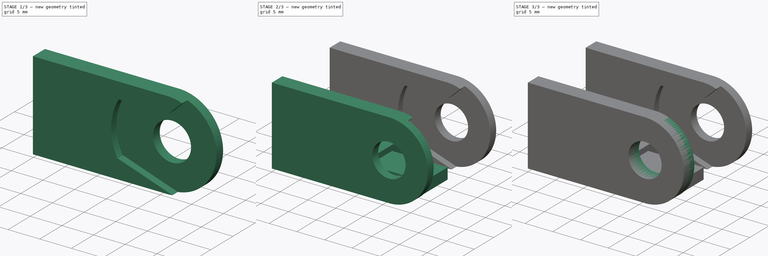
[diagram: build sequence overview — one tinted view per stage of 3, left to right]
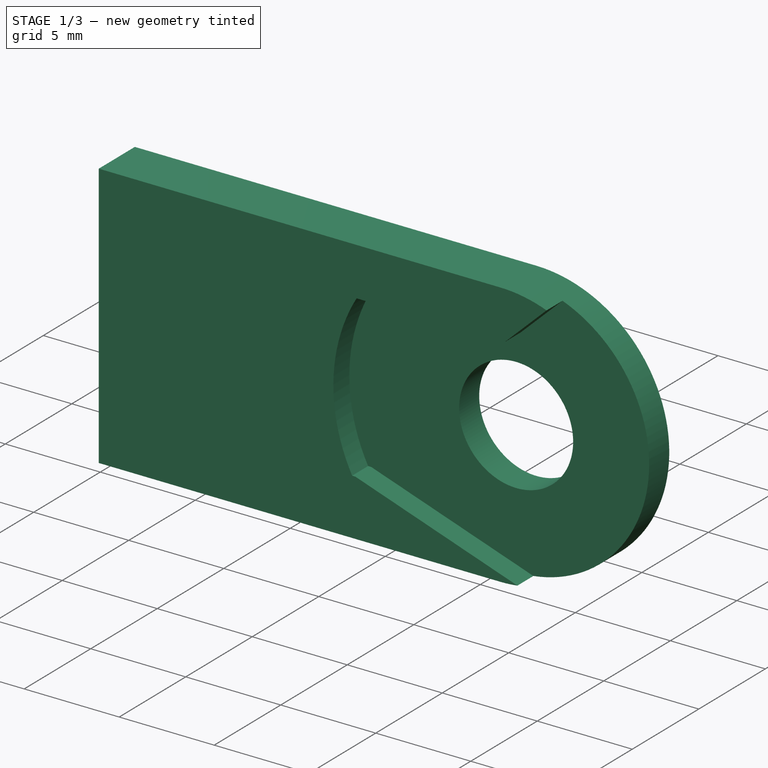
[diagram: stage 1 of 3 — iso view after this stage's code; geometry added in this stage tinted green]
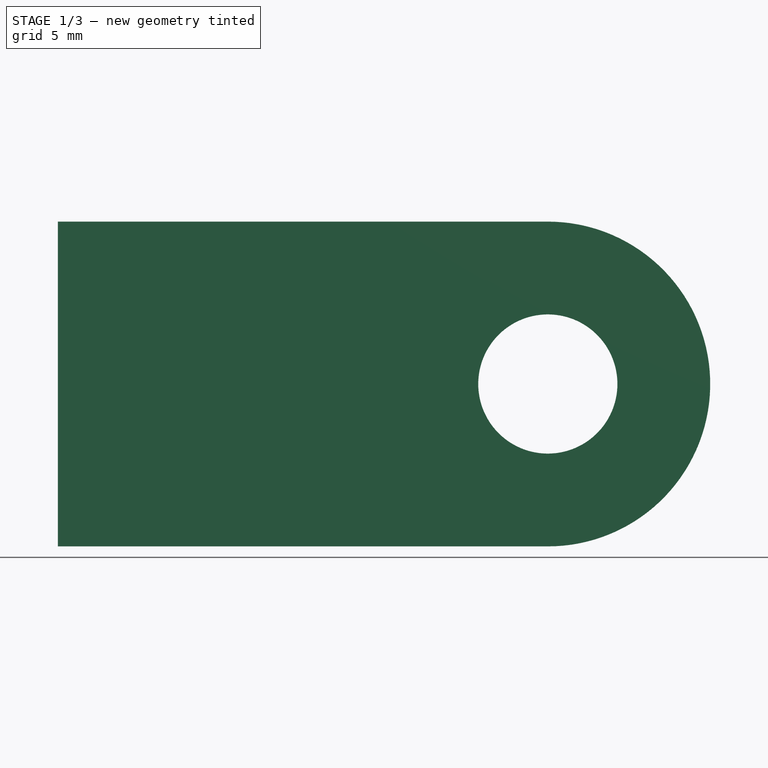
[diagram: stage 1 of 3 — front view after this stage's code; geometry added in this stage tinted green]
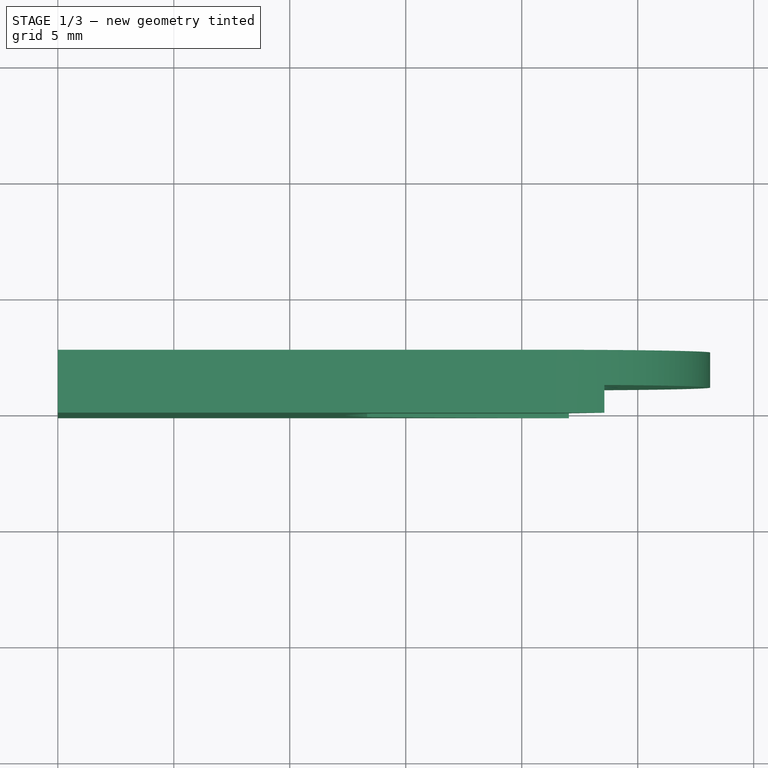
[diagram: stage 1 of 3 — top view after this stage's code; geometry added in this stage tinted green]
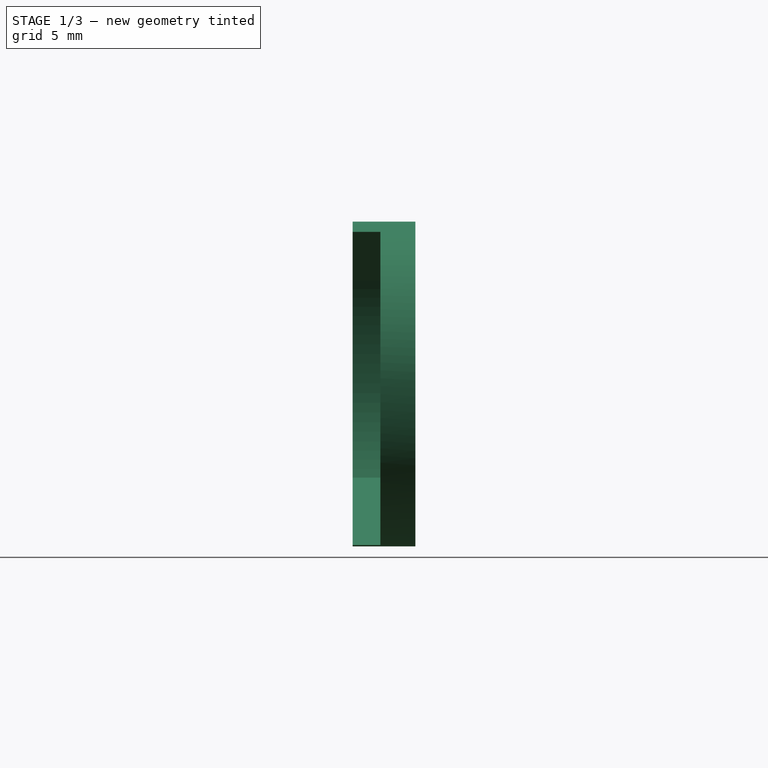
[diagram: stage 1 of 3 — right view after this stage's code; geometry added in this stage tinted green]
FCSTD DOCUMENT  (FreeCAD 0.14R3703 (Git))
Label: cadeneta
License: CC-BY 3.0
LicenseURL: http://creativecommons.org/licenses/by/3.0/
objects: Sketcher::SketchObject×3, Part::Box×2, PartDesign::Pocket×2, Part::Feature×2, Part::Mirroring×1, Part::MultiFuse×1, PartDesign::Pad×1
note: 15 computed .brp shape members not serialized (recipe doc carries the construction recipe); baked Part::Feature solids carry a one-line shape summary decoded from their .brp

FEATURE [Part::Feature] Pocket001
  shape: bbox 28.12 x 2.71 x 14 mm, 7 faces (baked)
FEATURE [Sketcher::SketchObject] Sketch001
  Placement = pos=(0,2.71,0) rot=(0,0.707107,0.707107;3.14159rad)
  Support = -> Pocket001 [Face4]
  sketch-geometry (6):
    g0: LineSegment StartX=-23.6292 StartY=13.6221 StartZ=0 EndX=-21.3589 EndY=11.4617 EndZ=0
    g1: LineSegment StartX=-21.3589 StartY=11.4617 StartZ=0 EndX=-13.5681 EndY=11.4617 EndZ=0
    g2: LineSegment StartX=-22.2056 StartY=0 StartZ=0 EndX=-13.5009 EndY=2.9617 EndZ=0
    g3: LineSegment StartX=-13.5009 StartY=2.9617 StartZ=0 EndX=-13.3332 EndY=2.9617 EndZ=0
    g4: ArcOfCircle CenterX=-21.1091 CenterY=7 CenterZ=0 NormalX=0 NormalY=0 NormalZ=1 Radius=8.76203 StartAngle=5.80419 EndAngle=6.81745
    g5: ArcOfCircle CenterX=-21.1091 CenterY=7 CenterZ=0 NormalX=0 NormalY=0 NormalZ=1 Radius=7.08536 StartAngle=1.93443 EndAngle=4.55701
  constraints (11):
    c: Coincident(g1,g0)
    c: Horizontal(g1)
    c: Coincident(g2,g3)
    c: Coincident(g4,g1)
    c: Horizontal(g3)
    c: DistanceY(g1,g3) = -8.5
    c: Coincident(g5,g0)
    c: PointOnObject(g5,g-1)
    c: Coincident(g2,g5)
    c: Coincident(g3,g4)
    c: Coincident(g5,g4)
FEATURE [PartDesign::Pocket] Pocket002
  Length = 1.2
  Sketch = -> Sketch001
  Type = 0
FEATURE [Part::Mirroring] Part__Mirroring  label="Pocket002 (Mirror #1)"
  Base = (14.0621,8.8,7)
  Normal = (0,1,-1.19209e-07)
  Source = -> Pocket002
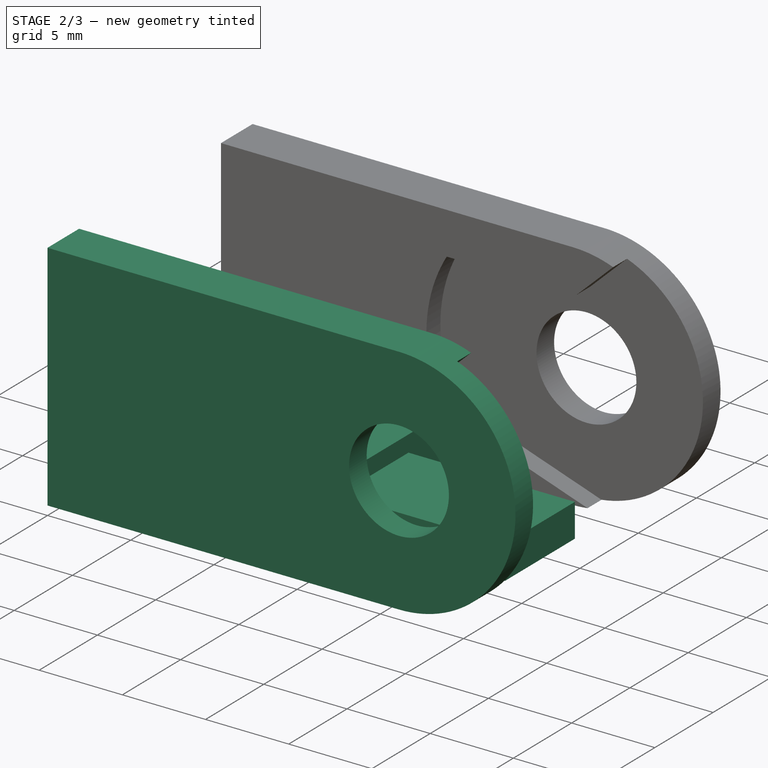
[diagram: stage 2 of 3 — iso view after this stage's code; geometry added in this stage tinted green]
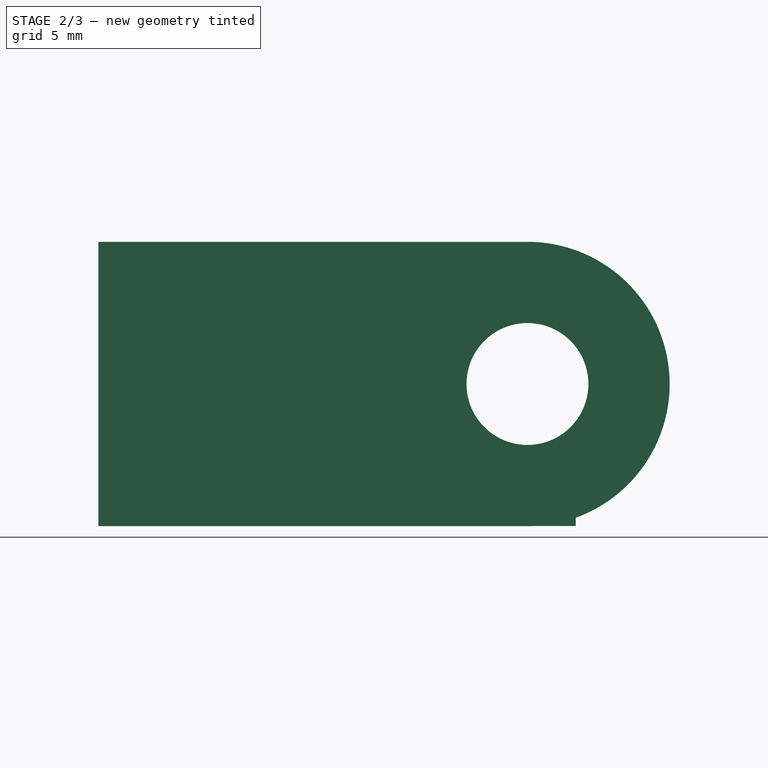
[diagram: stage 2 of 3 — front view after this stage's code; geometry added in this stage tinted green]
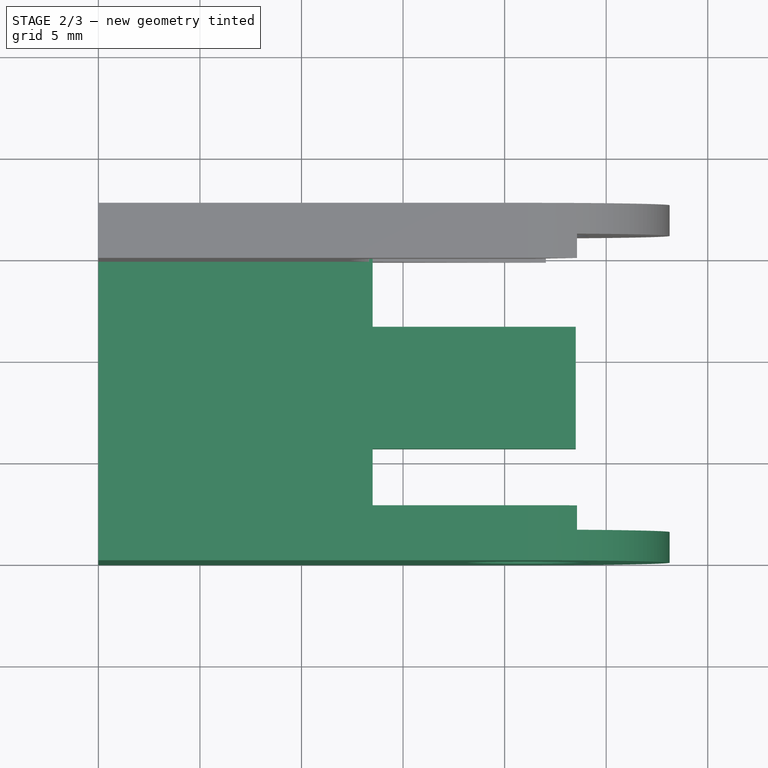
[diagram: stage 2 of 3 — top view after this stage's code; geometry added in this stage tinted green]
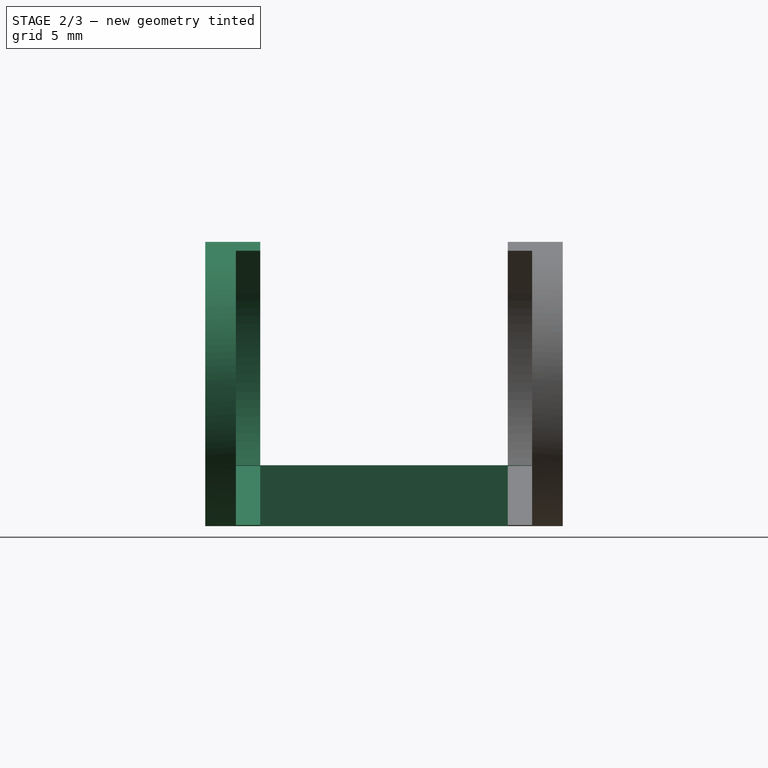
[diagram: stage 2 of 3 — right view after this stage's code; geometry added in this stage tinted green]
FEATURE [Part::Box] Box  label="Cube"
  Height = 3
  Length = 13.5
  Width = 17.5
FEATURE [Part::MultiFuse] Fusion
  Shapes = -> [Part__Mirroring,Pocket002,Box]
FEATURE [Sketcher::SketchObject] Sketch002
  Placement = pos=(13.5,0,0) rot=(0.57735,0.57735,0.57735;2.0944rad)
  Support = -> Fusion [Face17]
  sketch-geometry (4):
    g0: LineSegment StartX=5.70545 StartY=2.01179 StartZ=0 EndX=11.7055 EndY=2.01179 EndZ=0
    g1: LineSegment StartX=11.7055 StartY=2.01179 StartZ=0 EndX=11.7055 EndY=0.011787 EndZ=0
    g2: LineSegment StartX=11.7055 StartY=0.011787 StartZ=0 EndX=5.70545 EndY=0.011787 EndZ=0
    g3: LineSegment StartX=5.70545 StartY=0.011787 StartZ=0 EndX=5.70545 EndY=2.01179 EndZ=0
  constraints (10):
    c: Coincident(g0,g1)
    c: Coincident(g1,g2)
    c: Coincident(g2,g3)
    c: Coincident(g3,g0)
    c: Horizontal(g0)
    c: Horizontal(g2)
    c: Vertical(g1)
    c: Vertical(g3)
    c: Distance(g2) = 6
    c: Distance(g1) = 2
FEATURE [PartDesign::Pad] Pad
  Length = 10
  Length2 = 100
  Sketch = -> Sketch002
  Type = 0
FEATURE [Part::Feature] Pad001  label="cable-chain-end-female"
  shape: bbox 28.12 x 17.6 x 14 mm, 34 faces (baked)
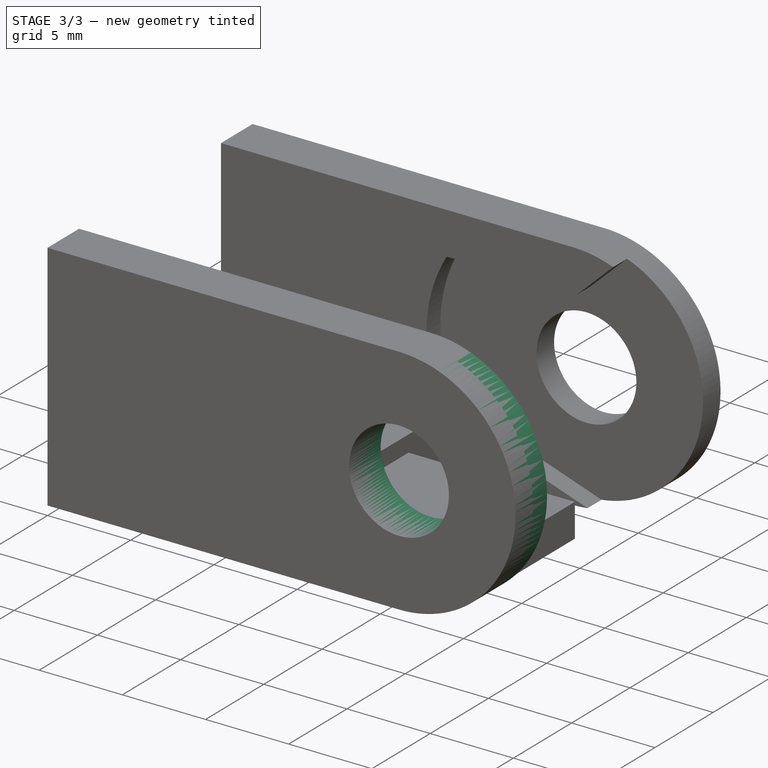
[diagram: stage 3 of 3 — iso view after this stage's code; geometry added in this stage tinted green]
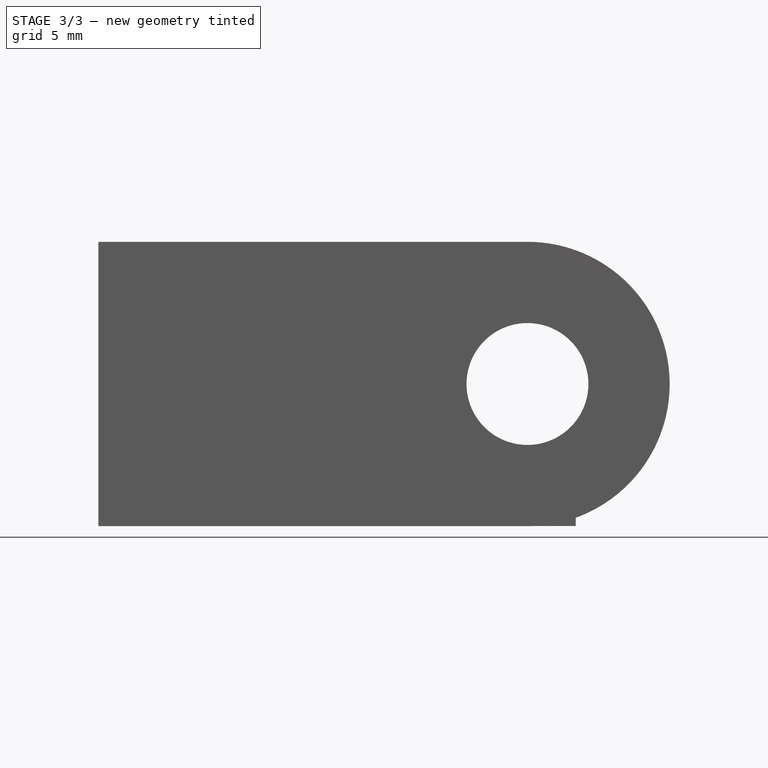
[diagram: stage 3 of 3 — front view after this stage's code; geometry added in this stage tinted green]
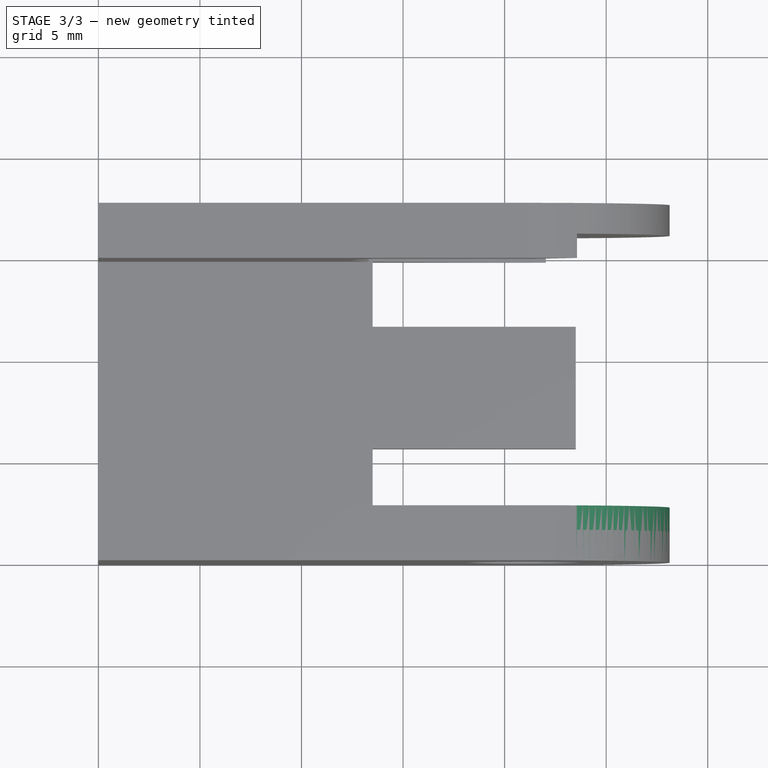
[diagram: stage 3 of 3 — top view after this stage's code; geometry added in this stage tinted green]
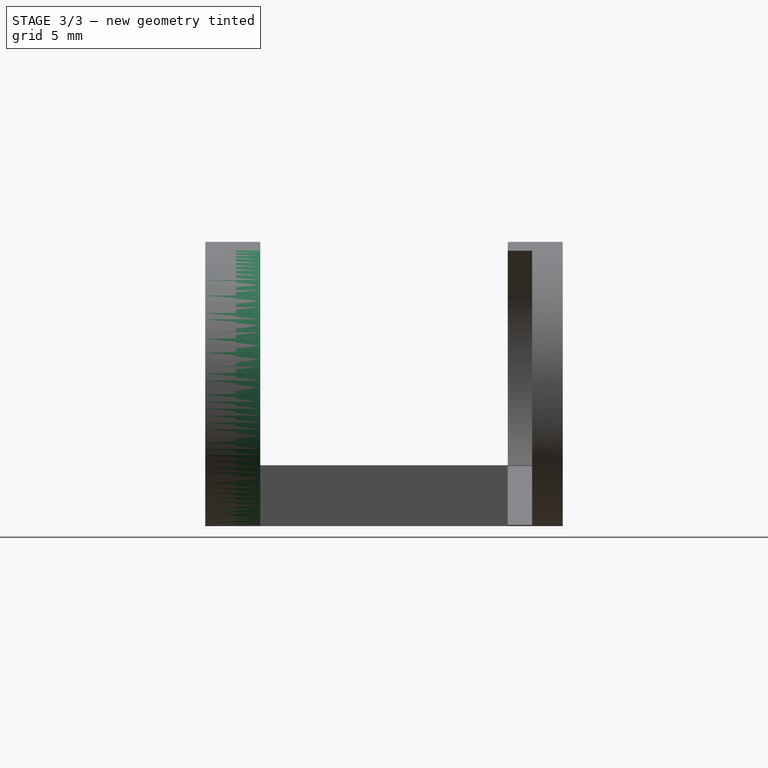
[diagram: stage 3 of 3 — right view after this stage's code; geometry added in this stage tinted green]
FEATURE [Part::Box] Box001  label="Cube001"
  Height = 14
  Length = 28.17
  Width = 2.71
FEATURE [Sketcher::SketchObject] Sketch
  Placement = pos=(0,0,0) rot=(1,0,0;1.5708rad)
  Support = -> Box001 [Face3]
  sketch-geometry (5):
    g0: Circle CenterX=21.1243 CenterY=7.00001 CenterZ=0 NormalX=0 NormalY=0 NormalZ=1 Radius=3
    g1: ArcOfCircle CenterX=21.1243 CenterY=7.00001 CenterZ=0 NormalX=0 NormalY=0 NormalZ=1 Radius=7.00001 StartAngle=4.71159 EndAngle=7.85654
    g2: LineSegment StartX=21.1064 StartY=14 StartZ=0 EndX=28.1726 EndY=14 EndZ=0
    g3: LineSegment StartX=28.1726 StartY=14 StartZ=0 EndX=28.1726 EndY=0 EndZ=0
    g4: LineSegment StartX=28.1726 StartY=0 StartZ=0 EndX=21.1187 EndY=0 EndZ=0
  constraints (8):
    c: Coincident(g1,g0)
    c: PointOnObject(g1,g-1)
    c: Coincident(g1,g2)
    c: Coincident(g2,g3)
    c: PointOnObject(g3,g-1)
    c: Vertical(g3)
    c: Coincident(g3,g4)
    c: Coincident(g4,g1)
FEATURE [PartDesign::Pocket] Pocket
  Length = 5
  Sketch = -> Sketch
  Type = 1
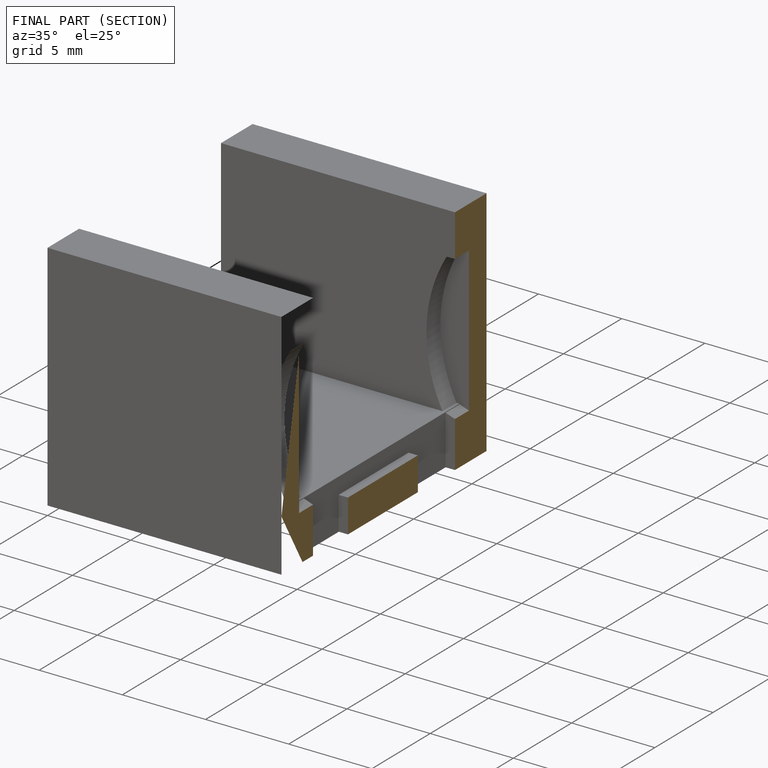
[diagram: finished part — half-section view (interior)]
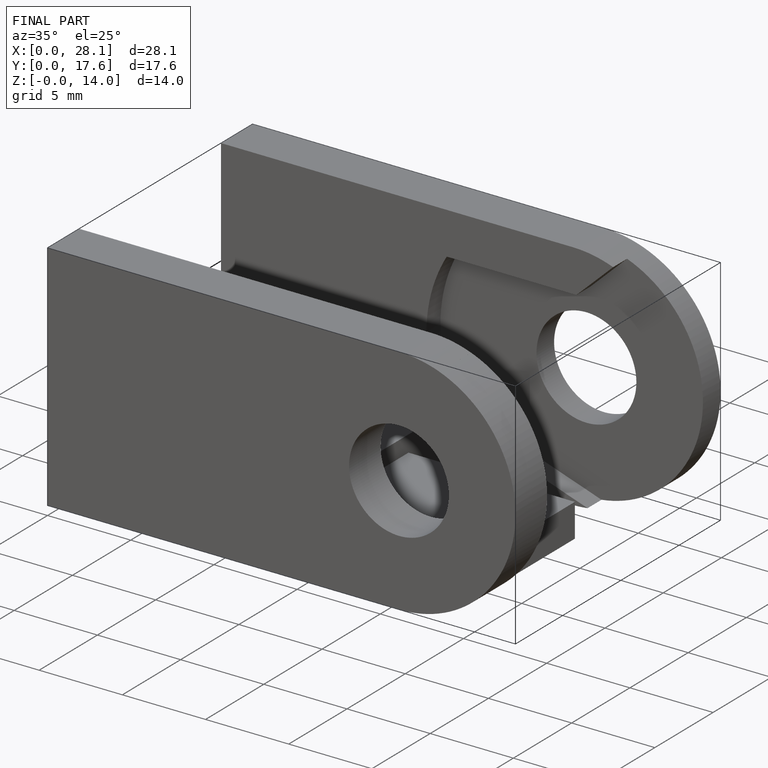
[diagram: finished part — iso view with bounding-box wireframe]
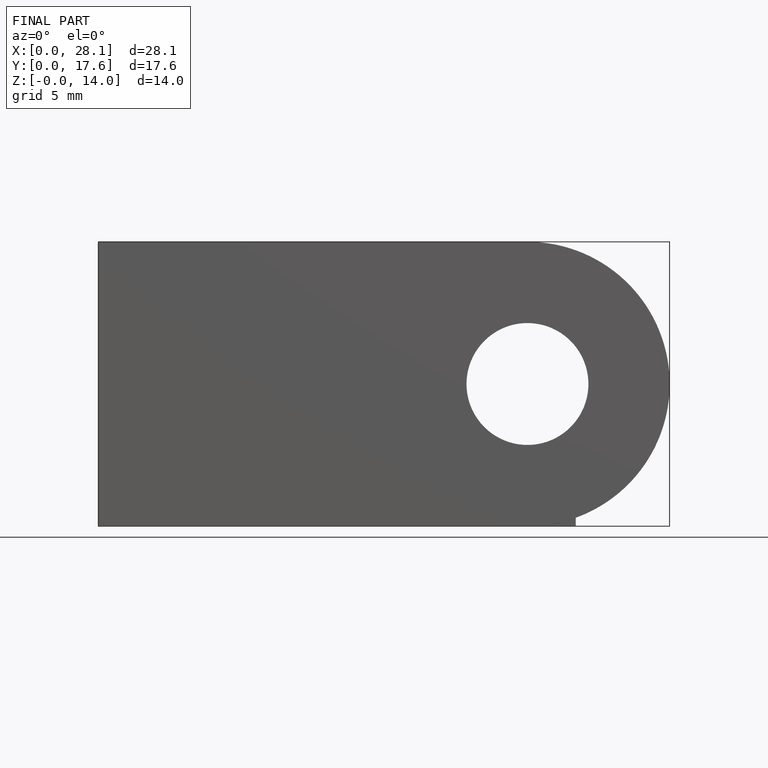
[diagram: finished part — front view with bounding-box wireframe]
